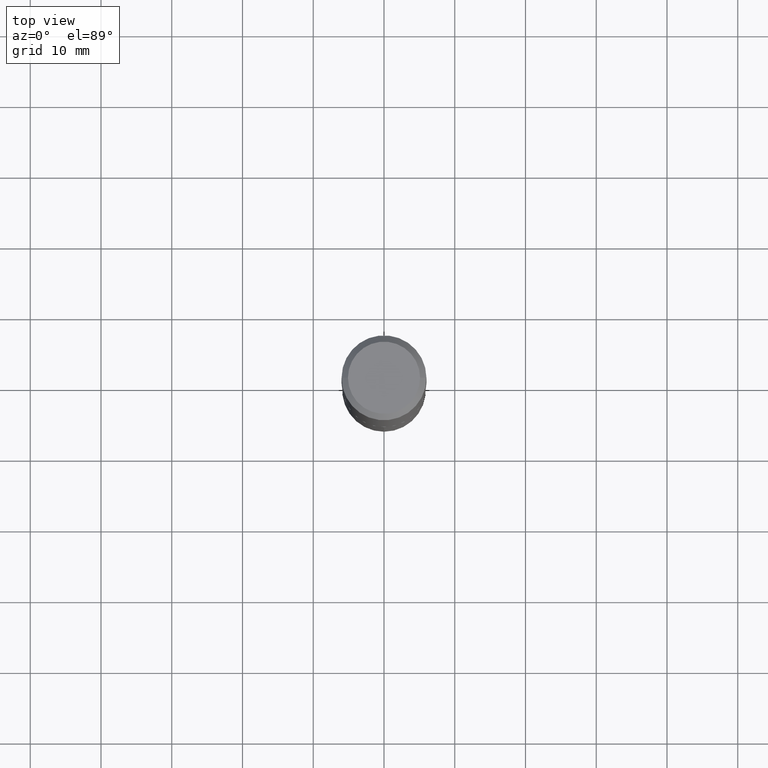
[diagram: clean part render]
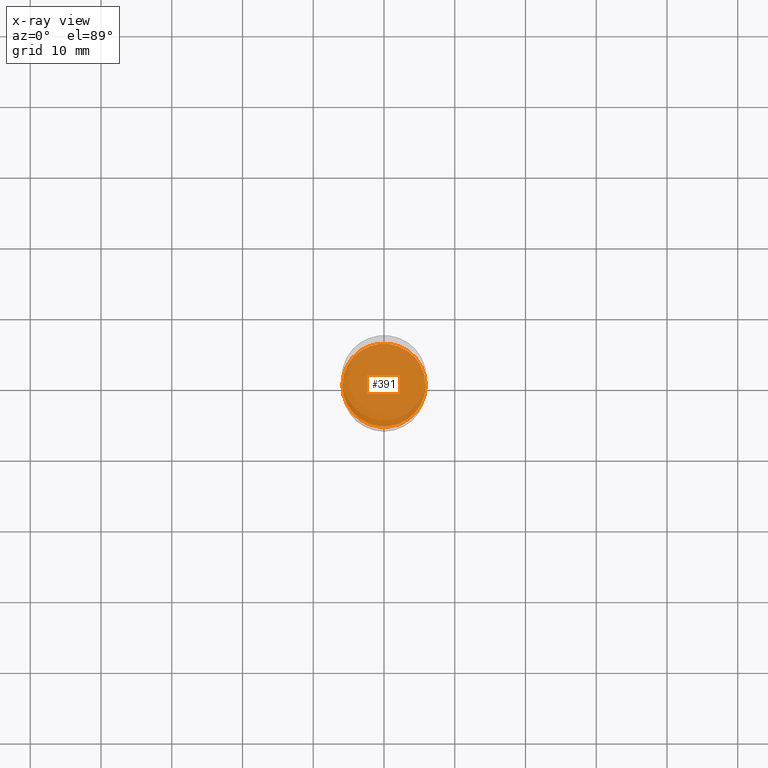
[diagram: x-ray — body ghosted, one internal face saturated and labeled with its STEP entity id]
A machine part, top view, then the same camera in x-ray: the body is ghosted and one INTERNAL B-rep face — a face not visible from any outside direction — is saturated and labeled: STEP entity #391.
In plain terms, the highlighted planar face has unit normal (-0, 0, 1).
Its self-contained STEP definition (entity closure, byte-faithful):
#44 = CARTESIAN_POINT ( 'NONE',  ( 0.2318000000000000060, -1.014100754866991103E-14, -2.440900000000000070 ) ) ;
#89 = VERTEX_POINT ( 'NONE', #147 ) ;
#100 = DIRECTION ( 'NONE',  ( -2.445468806185136597E-29, 3.491481338843145583E-15, 1.000000000000000000 ) ) ;
#147 = CARTESIAN_POINT ( 'NONE',  ( -0.2318000000000000060, -6.872669511316210280E-15, -2.440900000000000070 ) ) ;
#168 = CARTESIAN_POINT ( 'NONE',  ( 5.969144809017300159E-29, -8.522356799982234543E-15, -2.440900000000000070 ) ) ;
#187 = CIRCLE ( 'NONE', #430, 0.2318000000000000060 ) ;
#264 = DIRECTION ( 'NONE',  ( -2.438088387897960049E-29, 3.491481338843145188E-15, 1.000000000000000000 ) ) ;
#265 = EDGE_CURVE ( 'NONE', #89, #474, #342, .T. ) ;
#270 = EDGE_CURVE ( 'NONE', #474, #89, #187, .T. ) ;
#276 = ORIENTED_EDGE ( 'NONE', *, *, #265, .F. ) ;
#280 = DIRECTION ( 'NONE',  ( 1.000000000000000000, -6.982962677686268288E-15, 0.000000000000000000 ) ) ;
#282 = EDGE_LOOP ( 'NONE', ( #360, #276 ) ) ;
#340 = CARTESIAN_POINT ( 'NONE',  ( 3.960362813734956062E-29, -1.139904694999737651E-14, -2.440900000000000070 ) ) ;
#342 = CIRCLE ( 'NONE', #471, 0.2318000000000000060 ) ;
#360 = ORIENTED_EDGE ( 'NONE', *, *, #270, .F. ) ;
#367 = CARTESIAN_POINT ( 'NONE',  ( 5.969144809017300159E-29, -8.522356799982234543E-15, -2.440900000000000070 ) ) ;
#379 = DIRECTION ( 'NONE',  ( 1.000000000000000000, -6.982962677686265922E-15, 4.876176775795935793E-29 ) ) ;
#391 = ADVANCED_FACE ( 'NONE', ( #419 ), #492, .F. ) ;
#413 = DIRECTION ( 'NONE',  ( -2.445468806185136597E-29, 3.491481338843145583E-15, 1.000000000000000000 ) ) ;
#419 = FACE_OUTER_BOUND ( 'NONE', #282, .T. ) ;
#430 = AXIS2_PLACEMENT_3D ( 'NONE', #367, #100, #280 ) ;
#446 = DIRECTION ( 'NONE',  ( 1.000000000000000000, -6.982962677686268288E-15, 0.000000000000000000 ) ) ;
#463 = AXIS2_PLACEMENT_3D ( 'NONE', #340, #264, #379 ) ;
#471 = AXIS2_PLACEMENT_3D ( 'NONE', #168, #413, #446 ) ;
#474 = VERTEX_POINT ( 'NONE', #44 ) ;
#492 = PLANE ( 'NONE',  #463 ) ;